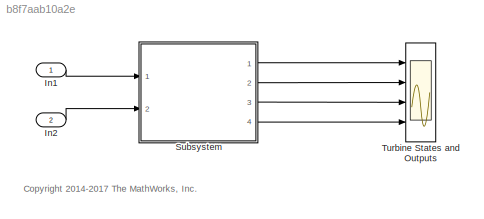
MODEL slx_b8f7aab10a2e
KIND model
CONFIG AbsTol = auto
CONFIG EnableMultiTasking = on
CONFIG FixedStep = 0.001
CONFIG MaxStep = 1e-4
CONFIG MinStep = auto
CONFIG RelTol = 1e-3
CONFIG SampleTimeConstraint = Unconstrained
CONFIG Solver = ode3
CONFIG SolverName = ode3
CONFIG StartTime = 0.0
CONFIG StopTime = 20
BLOCK [Inport] In1
  IconDisplay = Port number
BLOCK [Inport] In2
  IconDisplay = Port number
  Port = 2
BLOCK [ModelReference] Subsystem
  ModelNameDialog = ControlLogic.slx
  ModelReferenceVersion = 1.119
  Ports = [2, 4]
  Variant = off
BLOCK [Scope] Turbine States and Outputs
  NumInputPorts = 4
  Ports = [4]
  ScopeSpecificationString = C++SS(StrPVP('Location','[1033, 185, 1357, 757]'),StrPVP('Open','off'),MxPVP('AxesTitles',53,'struct(''axes1'',''%<SignalLabel>'',''axes2'',''%<SignalLabel>'',''axes3'',''%<SignalLabel>'',''axes4'',''%<SignalLabel>'')'),MxPVP('ScopeGraphics',56,'struct(''FigureColor'',''[0.5 0.5 0.5]'',''AxesColor'',''[0 0 0]'',''AxesTickColor'',''[1 1 1]'',''LineColors'',''[1 1 0;1 0 1;0 1 1;1 0 0;0 1 0;0 0 1]'',...<+535ch>
ANNOTATION (root): <copyright redacted>
LINE In1:1 -> Subsystem:1
LINE In2:1 -> Subsystem:2
LINE Subsystem:1 -> Turbine States and Outputs:1
LINE Subsystem:2 -> Turbine States and Outputs:2
LINE Subsystem:3 -> Turbine States and Outputs:3
LINE Subsystem:4 -> Turbine States and Outputs:4
